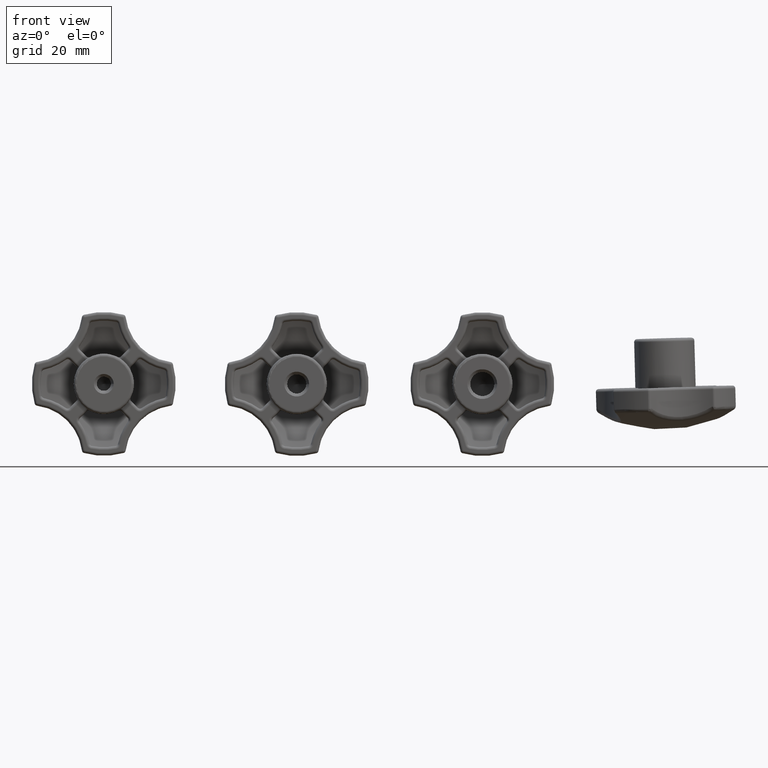
[diagram: clean part render]
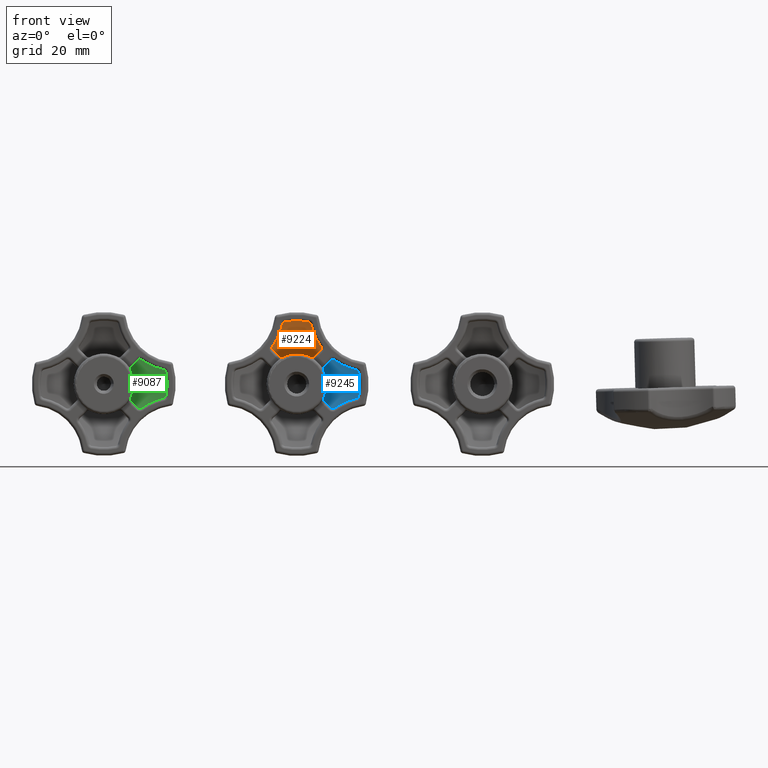
[diagram: same view with three faces highlighted in distinct colors, each labeled with its STEP entity id]
A machine part, front view with three faces highlighted in distinct colors.
Their STEP definitions:

[orange] entity #9224 — the highlighted spherical surface has radius 46.9918 mm.
#56=SPHERICAL_SURFACE('',#10084,46.9917910447761);
#583=CIRCLE('',#10023,10.5);
#617=CIRCLE('',#10079,46.9252429465837);
#618=CIRCLE('',#10082,22.);
#619=CIRCLE('',#10085,46.9252429465837);
#1616=FACE_OUTER_BOUND('',#2264,.T.);
#2264=EDGE_LOOP('',(#6885,#6886,#6887,#6888,#6889,#6890,#6891,#6892,#6893,
#6894,#6895,#6896));
#2825=B_SPLINE_CURVE_WITH_KNOTS('',3,(#16417,#16418,#16419,#16420,#16421,
#16422,#16423,#16424,#16425,#16426,#16427),.UNSPECIFIED.,.F.,.F.,(4,2,3,
2,4),(0.582585438771884,0.601025923742446,0.638791021911288,0.678956437213313,
0.697851038137029),.UNSPECIFIED.);
#2826=B_SPLINE_CURVE_WITH_KNOTS('',3,(#16466,#16467,#16468,#16469,#16470,
#16471,#16472,#16473,#16474,#16475,#16476),.UNSPECIFIED.,.F.,.F.,(4,2,3,
2,4),(0.579730270357903,0.598624871281619,0.638790286583643,0.676555384752485,
0.694995869723048),.UNSPECIFIED.);
#2827=B_SPLINE_CURVE_WITH_KNOTS('',3,(#16482,#16483,#16484,#16485,#16486,
#16487,#16488,#16489,#16490,#16491,#16492),.UNSPECIFIED.,.F.,.F.,(4,2,3,
2,4),(0.548042316468951,0.578951624599889,0.618751588709822,0.657628125187094,
0.687953347428517),.UNSPECIFIED.);
#2828=B_SPLINE_CURVE_WITH_KNOTS('',3,(#16507,#16508,#16509,#16510,#16511,
#16512,#16513,#16514,#16515,#16516,#16517),.UNSPECIFIED.,.F.,.F.,(4,2,3,
2,4),(0.549550723153343,0.579875945394766,0.618752481872039,0.658233009846153,
0.68944739603498),.UNSPECIFIED.);
#2829=B_SPLINE_CURVE_WITH_KNOTS('',3,(#16523,#16524,#16525,#16526,#16527,
#16528,#16529,#16530,#16531,#16532,#16533),.UNSPECIFIED.,.F.,.F.,(4,2,3,
2,4),(0.551679395331765,0.574459541545734,0.612195489768751,0.650579885670993,
0.673602083070949),.UNSPECIFIED.);
#2830=B_SPLINE_CURVE_WITH_KNOTS('',3,(#16537,#16538,#16539,#16540,#16541,
#16542,#16543,#16544),.UNSPECIFIED.,.F.,.F.,(4,2,2,4),(6.67150161002294,
6.80911498582731,7.26921044549458,7.51554097237896),.UNSPECIFIED.);
#2831=B_SPLINE_CURVE_WITH_KNOTS('',3,(#16548,#16549,#16550,#16551,#16552,
#16553,#16554,#16555),.UNSPECIFIED.,.F.,.F.,(4,2,2,4),(5.18249807994112,
5.4288286068255,5.88892406649277,6.02653744229714),.UNSPECIFIED.);
#2832=B_SPLINE_CURVE_WITH_KNOTS('',3,(#16559,#16560,#16561,#16562,#16563,
#16564,#16565,#16566,#16567,#16568,#16569),.UNSPECIFIED.,.F.,.F.,(4,2,3,
2,4),(0.550788896466554,0.573811093866509,0.612195489768751,0.649931437991769,
0.672711584205737),.UNSPECIFIED.);
#3950=VERTEX_POINT('',#16327);
#3951=VERTEX_POINT('',#16329);
#3967=VERTEX_POINT('',#16415);
#3968=VERTEX_POINT('',#16416);
#3979=VERTEX_POINT('',#16464);
#3980=VERTEX_POINT('',#16465);
#3981=VERTEX_POINT('',#16480);
#3982=VERTEX_POINT('',#16481);
#3985=VERTEX_POINT('',#16505);
#3986=VERTEX_POINT('',#16506);
#3987=VERTEX_POINT('',#16521);
#3988=VERTEX_POINT('',#16557);
#4964=EDGE_CURVE('',#3951,#3950,#583,.T.);
#4983=EDGE_CURVE('',#3967,#3968,#2825,.T.);
#5003=EDGE_CURVE('',#3979,#3980,#2826,.T.);
#5006=EDGE_CURVE('',#3981,#3982,#2827,.T.);
#5014=EDGE_CURVE('',#3985,#3986,#2828,.T.);
#5018=EDGE_CURVE('',#3950,#3987,#2829,.T.);
#5019=EDGE_CURVE('',#3987,#3981,#617,.T.);
#5020=EDGE_CURVE('',#3979,#3982,#2830,.F.);
#5021=EDGE_CURVE('',#3967,#3980,#618,.F.);
#5022=EDGE_CURVE('',#3985,#3968,#2831,.F.);
#5023=EDGE_CURVE('',#3986,#3988,#619,.T.);
#5024=EDGE_CURVE('',#3988,#3951,#2832,.T.);
#6885=ORIENTED_EDGE('',*,*,#5006,.T.);
#6886=ORIENTED_EDGE('',*,*,#5020,.F.);
#6887=ORIENTED_EDGE('',*,*,#5003,.T.);
#6888=ORIENTED_EDGE('',*,*,#5021,.F.);
#6889=ORIENTED_EDGE('',*,*,#4983,.T.);
#6890=ORIENTED_EDGE('',*,*,#5022,.F.);
#6891=ORIENTED_EDGE('',*,*,#5014,.T.);
#6892=ORIENTED_EDGE('',*,*,#5023,.T.);
#6893=ORIENTED_EDGE('',*,*,#5024,.T.);
#6894=ORIENTED_EDGE('',*,*,#4964,.T.);
#6895=ORIENTED_EDGE('',*,*,#5018,.T.);
#6896=ORIENTED_EDGE('',*,*,#5019,.T.);
#9224=ADVANCED_FACE('',(#1616),#56,.F.);
#10023=AXIS2_PLACEMENT_3D('',#16330,#11821,#11822);
#10079=AXIS2_PLACEMENT_3D('',#16535,#11947,#11948);
#10082=AXIS2_PLACEMENT_3D('',#16546,#11953,#11954);
#10084=AXIS2_PLACEMENT_3D('',#16556,#11957,#11958);
#10085=AXIS2_PLACEMENT_3D('',#16558,#11959,#11960);
#11821=DIRECTION('center_axis',(0.,1.,0.));
#11822=DIRECTION('ref_axis',(-1.,2.11471052309554E-16,-2.94936186321761E-16));
#11947=DIRECTION('center_axis',(0.707106781186548,0.,-0.707106781186547));
#11948=DIRECTION('ref_axis',(0.,1.,0.));
#11953=DIRECTION('center_axis',(0.,-1.,0.));
#11954=DIRECTION('ref_axis',(-1.,0.,0.));
#11957=DIRECTION('center_axis',(6.12323399573677E-17,0.,1.));
#11958=DIRECTION('ref_axis',(1.,0.,0.));
#11959=DIRECTION('center_axis',(-0.707106781186547,0.,-0.707106781186548));
#11960=DIRECTION('ref_axis',(0.,1.,0.));
#16327=CARTESIAN_POINT('',(4.81273704884783,10.5119034087928,9.33207169382273));
#16329=CARTESIAN_POINT('',(-4.81273704884785,10.5119034087928,9.33207169382273));
#16330=CARTESIAN_POINT('Origin',(0.,10.5119034087928,0.));
#16415=CARTESIAN_POINT('',(-4.18490897575034,6.23203856661572,21.5982993975147));
#16416=CARTESIAN_POINT('',(-4.97019303513557,6.53361737202533,20.8365260433964));
#16417=CARTESIAN_POINT('Ctrl Pts',(-4.18490897575033,6.23203856661571,21.5982993975147));
#16418=CARTESIAN_POINT('Ctrl Pts',(-4.24784108008377,6.23203856661571,21.5861056074648));
#16419=CARTESIAN_POINT('Ctrl Pts',(-4.31033890825064,6.23520123854353,21.5676267360533));
#16420=CARTESIAN_POINT('Ctrl Pts',(-4.49270764702952,6.25433555561599,21.4937435716521));
#16421=CARTESIAN_POINT('Ctrl Pts',(-4.6038696747948,6.28083118130086,21.4188173706508));
#16422=CARTESIAN_POINT('Ctrl Pts',(-4.6909662877788,6.31433464150758,21.3343283526805));
#16423=CARTESIAN_POINT('Ctrl Pts',(-4.78359868651538,6.34996755280683,21.2444692854522));
#16424=CARTESIAN_POINT('Ctrl Pts',(-4.86156941253217,6.39807778345344,21.1321734268189));
#16425=CARTESIAN_POINT('Ctrl Pts',(-4.93798727077353,6.47864732163774,20.9542284262148));
#16426=CARTESIAN_POINT('Ctrl Pts',(-4.95691580763733,6.50586159395927,20.8954076023773));
#16427=CARTESIAN_POINT('Ctrl Pts',(-4.97019303513556,6.53361737202543,20.8365260433964));
#16464=CARTESIAN_POINT('',(4.97019303513556,6.53361737202533,20.8365260433964));
#16465=CARTESIAN_POINT('',(4.18490897575032,6.23203856661572,21.5982993975147));
#16466=CARTESIAN_POINT('Ctrl Pts',(4.97019303513555,6.53361737202542,20.8365260433964));
#16467=CARTESIAN_POINT('Ctrl Pts',(4.95691580763731,6.50586159395927,20.8954076023773));
#16468=CARTESIAN_POINT('Ctrl Pts',(4.93798727077351,6.47864732163774,20.9542284262148));
#16469=CARTESIAN_POINT('Ctrl Pts',(4.86156941253216,6.39807778345344,21.1321734268189));
#16470=CARTESIAN_POINT('Ctrl Pts',(4.78359868651536,6.34996755280683,21.2444692854522));
#16471=CARTESIAN_POINT('Ctrl Pts',(4.69096628777879,6.31433464150758,21.3343283526805));
#16472=CARTESIAN_POINT('Ctrl Pts',(4.60386967479479,6.28083118130086,21.4188173706508));
#16473=CARTESIAN_POINT('Ctrl Pts',(4.4927076470295,6.25433555561598,21.4937435716521));
#16474=CARTESIAN_POINT('Ctrl Pts',(4.31033890825062,6.23520123854352,21.5676267360533));
#16475=CARTESIAN_POINT('Ctrl Pts',(4.24784108008376,6.23203856661571,21.5861056074648));
#16476=CARTESIAN_POINT('Ctrl Pts',(4.18490897575032,6.23203856661571,21.5982993975147));
#16480=CARTESIAN_POINT('',(8.32985461634166,9.40781189397483,11.8653885222744));
#16481=CARTESIAN_POINT('',(8.43334312095328,9.02492701250995,13.1581020679726));
#16482=CARTESIAN_POINT('Ctrl Pts',(8.32985461634167,9.40781189397482,11.8653885222744));
#16483=CARTESIAN_POINT('Ctrl Pts',(8.40113165373093,9.3756089882298,11.9366655596637));
#16484=CARTESIAN_POINT('Ctrl Pts',(8.46380593683761,9.34099368724918,12.0216045392694));
#16485=CARTESIAN_POINT('Ctrl Pts',(8.57305295630665,9.26259011390584,12.2334893061998));
#16486=CARTESIAN_POINT('Ctrl Pts',(8.60940587716854,9.21898698108753,12.3658722289644));
#16487=CARTESIAN_POINT('Ctrl Pts',(8.61955873439344,9.18139408391887,12.4926953588514));
#16488=CARTESIAN_POINT('Ctrl Pts',(8.62947602786542,9.14467340663315,12.6165759739593));
#16489=CARTESIAN_POINT('Ctrl Pts',(8.61563030293525,9.10870266841862,12.7520350045077));
#16490=CARTESIAN_POINT('Ctrl Pts',(8.54211919151406,9.05684990175007,12.9796059495577));
#16491=CARTESIAN_POINT('Ctrl Pts',(8.49346241867735,9.0381944817001,13.074885100079));
#16492=CARTESIAN_POINT('Ctrl Pts',(8.43334312095327,9.02492701250996,13.1581020679726));
#16505=CARTESIAN_POINT('',(-8.43334312095329,9.02492701250995,13.1581020679726));
#16506=CARTESIAN_POINT('',(-8.32985461634168,9.40781189397483,11.8653885222744));
#16507=CARTESIAN_POINT('Ctrl Pts',(-8.43334312095329,9.02492701250997,13.1581020679726));
#16508=CARTESIAN_POINT('Ctrl Pts',(-8.49346241867737,9.03819448170011,13.074885100079));
#16509=CARTESIAN_POINT('Ctrl Pts',(-8.54211919151407,9.05684990175007,12.9796059495577));
#16510=CARTESIAN_POINT('Ctrl Pts',(-8.61563030293526,9.10870266841862,12.7520350045077));
#16511=CARTESIAN_POINT('Ctrl Pts',(-8.62947602786543,9.14467340663315,12.6165759739593));
#16512=CARTESIAN_POINT('Ctrl Pts',(-8.61955873439345,9.18139408391887,12.4926953588514));
#16513=CARTESIAN_POINT('Ctrl Pts',(-8.60948736441488,9.21868525896103,12.3668901165794));
#16514=CARTESIAN_POINT('Ctrl Pts',(-8.57361938439071,9.26193095540231,12.2354805983731));
#16515=CARTESIAN_POINT('Ctrl Pts',(-8.46498154536542,9.34034463589141,12.0231968596306));
#16516=CARTESIAN_POINT('Ctrl Pts',(-8.40174571566366,9.37533155556333,11.9372796215964));
#16517=CARTESIAN_POINT('Ctrl Pts',(-8.32985461634168,9.40781189397482,11.8653885222744));
#16521=CARTESIAN_POINT('',(5.97819973944846,10.3369107293912,9.51373364538121));
#16523=CARTESIAN_POINT('Ctrl Pts',(4.81273704884783,10.5119034087928,9.33207169382273));
#16524=CARTESIAN_POINT('Ctrl Pts',(4.88291557655969,10.5119034087928,9.2958792157285));
#16525=CARTESIAN_POINT('Ctrl Pts',(4.9589326561753,10.5095065350007,9.26741787783101));
#16526=CARTESIAN_POINT('Ctrl Pts',(5.16649711063173,10.4967669792304,9.21745482010281));
#16527=CARTESIAN_POINT('Ctrl Pts',(5.30216194699638,10.482008783338,9.21360818689155));
#16528=CARTESIAN_POINT('Ctrl Pts',(5.42510437086792,10.4635649391621,9.23277135773344));
#16529=CARTESIAN_POINT('Ctrl Pts',(5.5501594150178,10.4448041593183,9.25226382502194));
#16530=CARTESIAN_POINT('Ctrl Pts',(5.67872677525319,10.4197501742752,9.29806363811888));
#16531=CARTESIAN_POINT('Ctrl Pts',(5.86028811160111,10.3739978295767,9.40892292086277));
#16532=CARTESIAN_POINT('Ctrl Pts',(5.92317172236646,10.3555939340801,9.4587056282992));
#16533=CARTESIAN_POINT('Ctrl Pts',(5.97819973944846,10.3369107293912,9.51373364538121));
#16535=CARTESIAN_POINT('Origin',(-1.76776695296637,-35.2917910447761,1.76776695296637));
#16537=CARTESIAN_POINT('Ctrl Pts',(8.43334312095328,9.02492701250996,13.1581020679726));
#16538=CARTESIAN_POINT('Ctrl Pts',(8.14750210498417,8.96184598834273,13.5537624224523));
#16539=CARTESIAN_POINT('Ctrl Pts',(7.87468129791616,8.88472048914707,13.9606276326671));
#16540=CARTESIAN_POINT('Ctrl Pts',(6.75822675360177,8.49164948558887,15.7578272492272));
#16541=CARTESIAN_POINT('Ctrl Pts',(6.08300990968191,8.03159986709822,17.2238585384876));
#16542=CARTESIAN_POINT('Ctrl Pts',(5.35975974996346,7.21944541389401,19.3124411680082));
#16543=CARTESIAN_POINT('Ctrl Pts',(5.14322347997051,6.89533405016276,20.0691743998092));
#16544=CARTESIAN_POINT('Ctrl Pts',(4.97019303513555,6.53361737202543,20.8365260433964));
#16546=CARTESIAN_POINT('Origin',(0.,6.23203856661572,0.));
#16548=CARTESIAN_POINT('Ctrl Pts',(-4.97019303513556,6.53361737202543,20.8365260433964));
#16549=CARTESIAN_POINT('Ctrl Pts',(-5.14322347997052,6.89533405016276,20.0691743998092));
#16550=CARTESIAN_POINT('Ctrl Pts',(-5.35975974996347,7.21944541389401,19.3124411680082));
#16551=CARTESIAN_POINT('Ctrl Pts',(-6.08300990968192,8.03159986709822,17.2238585384876));
#16552=CARTESIAN_POINT('Ctrl Pts',(-6.75822675360178,8.49164948558887,15.7578272492272));
#16553=CARTESIAN_POINT('Ctrl Pts',(-7.87468129791617,8.88472048914707,13.9606276326671));
#16554=CARTESIAN_POINT('Ctrl Pts',(-8.14750210498418,8.96184598834273,13.5537624224523));
#16555=CARTESIAN_POINT('Ctrl Pts',(-8.43334312095329,9.02492701250996,13.1581020679726));
#16556=CARTESIAN_POINT('Origin',(0.,-35.2917910447761,0.));
#16557=CARTESIAN_POINT('',(-5.97819973944847,10.3369107293912,9.5137336453812));
#16558=CARTESIAN_POINT('Origin',(1.76776695296637,-35.2917910447761,1.76776695296637));
#16559=CARTESIAN_POINT('Ctrl Pts',(-5.97819973944847,10.3369107293912,9.5137336453812));
#16560=CARTESIAN_POINT('Ctrl Pts',(-5.92317172236647,10.3555939340801,9.4587056282992));
#16561=CARTESIAN_POINT('Ctrl Pts',(-5.86028811160112,10.3739978295767,9.40892292086277));
#16562=CARTESIAN_POINT('Ctrl Pts',(-5.6787267752532,10.4197501742752,9.29806363811887));
#16563=CARTESIAN_POINT('Ctrl Pts',(-5.55015941501781,10.4448041593183,9.25226382502194));
#16564=CARTESIAN_POINT('Ctrl Pts',(-5.42510437086794,10.4635649391621,9.23277135773344));
#16565=CARTESIAN_POINT('Ctrl Pts',(-5.30216194699639,10.482008783338,9.21360818689154));
#16566=CARTESIAN_POINT('Ctrl Pts',(-5.16649711063175,10.4967669792304,9.21745482010281));
#16567=CARTESIAN_POINT('Ctrl Pts',(-4.95893265617531,10.5095065350007,9.267417877831));
#16568=CARTESIAN_POINT('Ctrl Pts',(-4.8829155765597,10.5119034087928,9.2958792157285));
#16569=CARTESIAN_POINT('Ctrl Pts',(-4.81273704884785,10.5119034087928,9.33207169382273));

[blue] entity #9245 — the highlighted spherical surface has radius 46.9918 mm.
#57=SPHERICAL_SURFACE('',#10161,46.9917910447761);
#581=CIRCLE('',#10021,10.5);
#674=CIRCLE('',#10159,46.9252429465837);
#675=CIRCLE('',#10162,46.9252429465837);
#676=CIRCLE('',#10163,22.);
#1637=FACE_OUTER_BOUND('',#2286,.T.);
#2286=EDGE_LOOP('',(#7029,#7030,#7031,#7032,#7033,#7034,#7035,#7036,#7037,
#7038,#7039,#7040));
#2833=B_SPLINE_CURVE_WITH_KNOTS('',3,(#16635,#16636,#16637,#16638,#16639,
#16640,#16641,#16642,#16643,#16644,#16645),.UNSPECIFIED.,.F.,.F.,(4,2,3,
2,4),(0.549549829991126,0.579875052232549,0.618751588709822,0.658551552819754,
0.689460860950692),.UNSPECIFIED.);
#2834=B_SPLINE_CURVE_WITH_KNOTS('',3,(#16651,#16652,#16653,#16654,#16655,
#16656,#16657,#16658,#16659,#16660,#16661),.UNSPECIFIED.,.F.,.F.,(4,2,3,
2,4),(0.582585438771884,0.601025923742446,0.638791021911289,0.678956437213313,
0.697851038137029),.UNSPECIFIED.);
#2835=B_SPLINE_CURVE_WITH_KNOTS('',3,(#16670,#16671,#16672,#16673,#16674,
#16675,#16676,#16677,#16678,#16679,#16680),.UNSPECIFIED.,.F.,.F.,(4,2,3,
2,4),(0.579730270357903,0.598624871281619,0.638790286583643,0.676555384752485,
0.694995869723048),.UNSPECIFIED.);
#2836=B_SPLINE_CURVE_WITH_KNOTS('',3,(#16686,#16687,#16688,#16689,#16690,
#16691,#16692,#16693,#16694,#16695,#16696),.UNSPECIFIED.,.F.,.F.,(4,2,3,
2,4),(0.548042316468952,0.57895162459989,0.618751588709822,0.657628125187095,
0.687953347428518),.UNSPECIFIED.);
#2837=B_SPLINE_CURVE_WITH_KNOTS('',3,(#16761,#16762,#16763,#16764,#16765,
#16766,#16767,#16768,#16769,#16770,#16771),.UNSPECIFIED.,.F.,.F.,(4,2,3,
2,4),(0.551679395331766,0.574459541545734,0.612195489768751,0.650579885670993,
0.673602083070949),.UNSPECIFIED.);
#2838=B_SPLINE_CURVE_WITH_KNOTS('',3,(#16776,#16777,#16778,#16779,#16780,
#16781,#16782,#16783,#16784,#16785,#16786),.UNSPECIFIED.,.F.,.F.,(4,2,3,
2,4),(0.55078897323554,0.573811170635495,0.612195566537737,0.649931514760754,
0.672711660974723),.UNSPECIFIED.);
#2839=B_SPLINE_CURVE_WITH_KNOTS('',3,(#16790,#16791,#16792,#16793,#16794,
#16795,#16796,#16797),.UNSPECIFIED.,.F.,.F.,(4,2,2,4),(6.67150161002294,
6.80911498582731,7.26921044549458,7.51554097237896),.UNSPECIFIED.);
#2840=B_SPLINE_CURVE_WITH_KNOTS('',3,(#16799,#16800,#16801,#16802,#16803,
#16804,#16805,#16806),.UNSPECIFIED.,.F.,.F.,(4,2,2,4),(5.18249807994112,
5.4288286068255,5.88892406649277,6.02653744229714),.UNSPECIFIED.);
#3944=VERTEX_POINT('',#16297);
#3945=VERTEX_POINT('',#16299);
#4009=VERTEX_POINT('',#16633);
#4010=VERTEX_POINT('',#16634);
#4011=VERTEX_POINT('',#16649);
#4012=VERTEX_POINT('',#16650);
#4013=VERTEX_POINT('',#16668);
#4014=VERTEX_POINT('',#16669);
#4015=VERTEX_POINT('',#16684);
#4016=VERTEX_POINT('',#16685);
#4045=VERTEX_POINT('',#16759);
#4046=VERTEX_POINT('',#16775);
#4958=EDGE_CURVE('',#3945,#3944,#581,.T.);
#5056=EDGE_CURVE('',#4009,#4010,#2833,.T.);
#5059=EDGE_CURVE('',#4011,#4012,#2834,.T.);
#5064=EDGE_CURVE('',#4013,#4014,#2835,.T.);
#5067=EDGE_CURVE('',#4015,#4016,#2836,.T.);
#5101=EDGE_CURVE('',#3944,#4045,#2837,.T.);
#5102=EDGE_CURVE('',#4045,#4015,#674,.T.);
#5103=EDGE_CURVE('',#4046,#3945,#2838,.T.);
#5105=EDGE_CURVE('',#4010,#4046,#675,.T.);
#5106=EDGE_CURVE('',#4013,#4016,#2839,.F.);
#5107=EDGE_CURVE('',#4011,#4014,#676,.F.);
#5108=EDGE_CURVE('',#4009,#4012,#2840,.F.);
#7029=ORIENTED_EDGE('',*,*,#5056,.T.);
#7030=ORIENTED_EDGE('',*,*,#5105,.T.);
#7031=ORIENTED_EDGE('',*,*,#5103,.T.);
#7032=ORIENTED_EDGE('',*,*,#4958,.T.);
#7033=ORIENTED_EDGE('',*,*,#5101,.T.);
#7034=ORIENTED_EDGE('',*,*,#5102,.T.);
#7035=ORIENTED_EDGE('',*,*,#5067,.T.);
#7036=ORIENTED_EDGE('',*,*,#5106,.F.);
#7037=ORIENTED_EDGE('',*,*,#5064,.T.);
#7038=ORIENTED_EDGE('',*,*,#5107,.F.);
#7039=ORIENTED_EDGE('',*,*,#5059,.T.);
#7040=ORIENTED_EDGE('',*,*,#5108,.F.);
#9245=ADVANCED_FACE('',(#1637),#57,.F.);
#10021=AXIS2_PLACEMENT_3D('',#16300,#11815,#11816);
#10159=AXIS2_PLACEMENT_3D('',#16773,#12125,#12126);
#10161=AXIS2_PLACEMENT_3D('',#16788,#12130,#12131);
#10162=AXIS2_PLACEMENT_3D('',#16789,#12132,#12133);
#10163=AXIS2_PLACEMENT_3D('',#16798,#12134,#12135);
#11815=DIRECTION('center_axis',(0.,1.,0.));
#11816=DIRECTION('ref_axis',(-1.,2.11471052309554E-16,-2.94936186321761E-16));
#12125=DIRECTION('center_axis',(-0.707106781186547,0.,-0.707106781186548));
#12126=DIRECTION('ref_axis',(0.,1.,0.));
#12130=DIRECTION('center_axis',(6.12323399573677E-17,0.,1.));
#12131=DIRECTION('ref_axis',(1.,0.,0.));
#12132=DIRECTION('center_axis',(-0.707106781186548,0.,0.707106781186547));
#12133=DIRECTION('ref_axis',(0.,-1.,0.));
#12134=DIRECTION('center_axis',(0.,-1.,0.));
#12135=DIRECTION('ref_axis',(-1.,0.,0.));
#16297=CARTESIAN_POINT('',(9.33207169382273,10.5119034087928,-4.81273704884783));
#16299=CARTESIAN_POINT('',(9.33207169382273,10.5119034087928,4.81273704884785));
#16300=CARTESIAN_POINT('Origin',(0.,10.5119034087928,0.));
#16633=CARTESIAN_POINT('',(13.1581020679726,9.02492701250995,8.43334312095329));
#16634=CARTESIAN_POINT('',(11.8653885222744,9.40781189397483,8.32985461634168));
#16635=CARTESIAN_POINT('Ctrl Pts',(13.1581020679726,9.02492701250997,8.43334312095329));
#16636=CARTESIAN_POINT('Ctrl Pts',(13.074885100079,9.03819448170011,8.49346241867736));
#16637=CARTESIAN_POINT('Ctrl Pts',(12.9796059495577,9.05684990175008,8.54211919151407));
#16638=CARTESIAN_POINT('Ctrl Pts',(12.7520350045077,9.10870266841863,8.61563030293526));
#16639=CARTESIAN_POINT('Ctrl Pts',(12.6165759739593,9.14467340663315,8.62947602786543));
#16640=CARTESIAN_POINT('Ctrl Pts',(12.4926953588514,9.18139408391887,8.61955873439345));
#16641=CARTESIAN_POINT('Ctrl Pts',(12.3658722289644,9.21898698108753,8.60940587716854));
#16642=CARTESIAN_POINT('Ctrl Pts',(12.2334893061998,9.26259011390584,8.57305295630665));
#16643=CARTESIAN_POINT('Ctrl Pts',(12.0216045392693,9.34099368724918,8.46380593683761));
#16644=CARTESIAN_POINT('Ctrl Pts',(11.9366655596637,9.3756089882298,8.40113165373094));
#16645=CARTESIAN_POINT('Ctrl Pts',(11.8653885222744,9.40781189397482,8.32985461634167));
#16649=CARTESIAN_POINT('',(21.5982993975147,6.23203856661572,4.18490897575033));
#16650=CARTESIAN_POINT('',(20.8365260433964,6.53361737202533,4.97019303513557));
#16651=CARTESIAN_POINT('Ctrl Pts',(21.5982993975147,6.23203856661572,4.18490897575033));
#16652=CARTESIAN_POINT('Ctrl Pts',(21.5861056074648,6.23203856661572,4.24784108008377));
#16653=CARTESIAN_POINT('Ctrl Pts',(21.5676267360533,6.23520123854353,4.31033890825063));
#16654=CARTESIAN_POINT('Ctrl Pts',(21.4937435716521,6.25433555561599,4.49270764702951));
#16655=CARTESIAN_POINT('Ctrl Pts',(21.4188173706508,6.28083118130086,4.6038696747948));
#16656=CARTESIAN_POINT('Ctrl Pts',(21.3343283526805,6.31433464150758,4.6909662877788));
#16657=CARTESIAN_POINT('Ctrl Pts',(21.2444692854522,6.34996755280683,4.78359868651537));
#16658=CARTESIAN_POINT('Ctrl Pts',(21.1321734268189,6.39807778345344,4.86156941253217));
#16659=CARTESIAN_POINT('Ctrl Pts',(20.9542284262148,6.47864732163774,4.93798727077352));
#16660=CARTESIAN_POINT('Ctrl Pts',(20.8954076023773,6.50586159395926,4.95691580763733));
#16661=CARTESIAN_POINT('Ctrl Pts',(20.8365260433964,6.53361737202542,4.97019303513556));
#16668=CARTESIAN_POINT('',(20.8365260433964,6.53361737202533,-4.97019303513556));
#16669=CARTESIAN_POINT('',(21.5982993975147,6.23203856661572,-4.18490897575032));
#16670=CARTESIAN_POINT('Ctrl Pts',(20.8365260433964,6.53361737202542,-4.97019303513555));
#16671=CARTESIAN_POINT('Ctrl Pts',(20.8954076023773,6.50586159395926,-4.95691580763731));
#16672=CARTESIAN_POINT('Ctrl Pts',(20.9542284262148,6.47864732163774,-4.93798727077351));
#16673=CARTESIAN_POINT('Ctrl Pts',(21.1321734268189,6.39807778345344,-4.86156941253216));
#16674=CARTESIAN_POINT('Ctrl Pts',(21.2444692854522,6.34996755280683,-4.78359868651536));
#16675=CARTESIAN_POINT('Ctrl Pts',(21.3343283526805,6.31433464150758,-4.69096628777879));
#16676=CARTESIAN_POINT('Ctrl Pts',(21.4188173706508,6.28083118130086,-4.60386967479479));
#16677=CARTESIAN_POINT('Ctrl Pts',(21.4937435716521,6.25433555561598,-4.4927076470295));
#16678=CARTESIAN_POINT('Ctrl Pts',(21.5676267360533,6.23520123854352,-4.31033890825062));
#16679=CARTESIAN_POINT('Ctrl Pts',(21.5861056074648,6.23203856661572,-4.24784108008376));
#16680=CARTESIAN_POINT('Ctrl Pts',(21.5982993975147,6.23203856661572,-4.18490897575032));
#16684=CARTESIAN_POINT('',(11.8653885222744,9.40781189397483,-8.32985461634166));
#16685=CARTESIAN_POINT('',(13.1581020679726,9.02492701250995,-8.43334312095327));
#16686=CARTESIAN_POINT('Ctrl Pts',(11.8653885222744,9.40781189397482,-8.32985461634166));
#16687=CARTESIAN_POINT('Ctrl Pts',(11.9366655596637,9.3756089882298,-8.40113165373092));
#16688=CARTESIAN_POINT('Ctrl Pts',(12.0216045392694,9.34099368724918,-8.4638059368376));
#16689=CARTESIAN_POINT('Ctrl Pts',(12.2334893061998,9.26259011390584,-8.57305295630664));
#16690=CARTESIAN_POINT('Ctrl Pts',(12.3658722289644,9.21898698108753,-8.60940587716853));
#16691=CARTESIAN_POINT('Ctrl Pts',(12.4926953588514,9.18139408391887,-8.61955873439343));
#16692=CARTESIAN_POINT('Ctrl Pts',(12.6165759739593,9.14467340663315,-8.62947602786542));
#16693=CARTESIAN_POINT('Ctrl Pts',(12.7520350045077,9.10870266841862,-8.61563030293524));
#16694=CARTESIAN_POINT('Ctrl Pts',(12.9796059495578,9.05684990175007,-8.54211919151405));
#16695=CARTESIAN_POINT('Ctrl Pts',(13.074885100079,9.0381944817001,-8.49346241867735));
#16696=CARTESIAN_POINT('Ctrl Pts',(13.1581020679726,9.02492701250996,-8.43334312095327));
#16759=CARTESIAN_POINT('',(9.51373364538121,10.3369107293912,-5.97819973944846));
#16761=CARTESIAN_POINT('Ctrl Pts',(9.33207169382273,10.5119034087928,-4.81273704884783));
#16762=CARTESIAN_POINT('Ctrl Pts',(9.2958792157285,10.5119034087928,-4.88291557655969));
#16763=CARTESIAN_POINT('Ctrl Pts',(9.26741787783101,10.5095065350007,-4.9589326561753));
#16764=CARTESIAN_POINT('Ctrl Pts',(9.21745482010281,10.4967669792304,-5.16649711063173));
#16765=CARTESIAN_POINT('Ctrl Pts',(9.21360818689155,10.482008783338,-5.30216194699637));
#16766=CARTESIAN_POINT('Ctrl Pts',(9.23277135773345,10.4635649391621,-5.42510437086792));
#16767=CARTESIAN_POINT('Ctrl Pts',(9.25226382502195,10.4448041593183,-5.5501594150178));
#16768=CARTESIAN_POINT('Ctrl Pts',(9.29806363811888,10.4197501742752,-5.67872677525318));
#16769=CARTESIAN_POINT('Ctrl Pts',(9.40892292086277,10.3739978295767,-5.86028811160111));
#16770=CARTESIAN_POINT('Ctrl Pts',(9.45870562829921,10.3555939340801,-5.92317172236645));
#16771=CARTESIAN_POINT('Ctrl Pts',(9.51373364538121,10.3369107293912,-5.97819973944846));
#16773=CARTESIAN_POINT('Origin',(1.76776695296637,-35.2917910447761,1.76776695296637));
#16775=CARTESIAN_POINT('',(9.5137336453812,10.3369107293912,5.97819973944847));
#16776=CARTESIAN_POINT('Ctrl Pts',(9.5137336453812,10.3369107293912,5.97819973944847));
#16777=CARTESIAN_POINT('Ctrl Pts',(9.4587056282992,10.3555939340801,5.92317172236647));
#16778=CARTESIAN_POINT('Ctrl Pts',(9.40892292086276,10.3739978295767,5.86028811160112));
#16779=CARTESIAN_POINT('Ctrl Pts',(9.29806363811887,10.4197501742752,5.6787267752532));
#16780=CARTESIAN_POINT('Ctrl Pts',(9.25226382502194,10.4448041593183,5.55015941501781));
#16781=CARTESIAN_POINT('Ctrl Pts',(9.23277135773344,10.4635649391621,5.42510437086794));
#16782=CARTESIAN_POINT('Ctrl Pts',(9.21360818689154,10.482008783338,5.30216194699639));
#16783=CARTESIAN_POINT('Ctrl Pts',(9.21745482010281,10.4967669792304,5.16649711063174));
#16784=CARTESIAN_POINT('Ctrl Pts',(9.267417877831,10.5095065350007,4.95893265617531));
#16785=CARTESIAN_POINT('Ctrl Pts',(9.2958792157285,10.5119034087928,4.8829155765597));
#16786=CARTESIAN_POINT('Ctrl Pts',(9.33207169382273,10.5119034087928,4.81273704884785));
#16788=CARTESIAN_POINT('Origin',(0.,-35.2917910447761,0.));
#16789=CARTESIAN_POINT('Origin',(1.76776695296637,-35.2917910447761,-1.76776695296637));
#16790=CARTESIAN_POINT('Ctrl Pts',(13.1581020679726,9.02492701250996,-8.43334312095327));
#16791=CARTESIAN_POINT('Ctrl Pts',(13.5537624224523,8.96184598834273,-8.14750210498417));
#16792=CARTESIAN_POINT('Ctrl Pts',(13.9606276326671,8.88472048914707,-7.87468129791615));
#16793=CARTESIAN_POINT('Ctrl Pts',(15.7578272492272,8.49164948558887,-6.75822675360177));
#16794=CARTESIAN_POINT('Ctrl Pts',(17.2238585384876,8.03159986709822,-6.08300990968191));
#16795=CARTESIAN_POINT('Ctrl Pts',(19.3124411680082,7.21944541389401,-5.35975974996346));
#16796=CARTESIAN_POINT('Ctrl Pts',(20.0691743998092,6.89533405016276,-5.14322347997051));
#16797=CARTESIAN_POINT('Ctrl Pts',(20.8365260433964,6.53361737202542,-4.97019303513555));
#16798=CARTESIAN_POINT('Origin',(0.,6.23203856661572,0.));
#16799=CARTESIAN_POINT('Ctrl Pts',(20.8365260433964,6.53361737202543,4.97019303513556));
#16800=CARTESIAN_POINT('Ctrl Pts',(20.0691743998092,6.89533405016276,5.14322347997052));
#16801=CARTESIAN_POINT('Ctrl Pts',(19.3124411680082,7.21944541389401,5.35975974996347));
#16802=CARTESIAN_POINT('Ctrl Pts',(17.2238585384876,8.03159986709822,6.08300990968191));
#16803=CARTESIAN_POINT('Ctrl Pts',(15.7578272492272,8.49164948558886,6.75822675360178));
#16804=CARTESIAN_POINT('Ctrl Pts',(13.9606276326671,8.88472048914707,7.87468129791616));
#16805=CARTESIAN_POINT('Ctrl Pts',(13.5537624224523,8.96184598834273,8.14750210498418));
#16806=CARTESIAN_POINT('Ctrl Pts',(13.1581020679726,9.02492701250996,8.43334312095329));

[green] entity #9087 — the highlighted spherical surface has radius 46.9918 mm.
#44=SPHERICAL_SURFACE('',#9822,46.9917910447761);
#380=CIRCLE('',#9682,10.5);
#473=CIRCLE('',#9820,46.9252429465837);
#474=CIRCLE('',#9823,46.9252429465837);
#475=CIRCLE('',#9824,22.);
#1479=FACE_OUTER_BOUND('',#2119,.T.);
#2119=EDGE_LOOP('',(#6299,#6300,#6301,#6302,#6303,#6304,#6305,#6306,#6307,
#6308,#6309,#6310));
#2750=B_SPLINE_CURVE_WITH_KNOTS('',3,(#14633,#14634,#14635,#14636,#14637,
#14638,#14639,#14640,#14641,#14642,#14643),.UNSPECIFIED.,.F.,.F.,(4,2,3,
2,4),(0.549549829991126,0.579875052232549,0.618751588709822,0.658551552819754,
0.689460860950692),.UNSPECIFIED.);
#2751=B_SPLINE_CURVE_WITH_KNOTS('',3,(#14649,#14650,#14651,#14652,#14653,
#14654,#14655,#14656,#14657,#14658,#14659),.UNSPECIFIED.,.F.,.F.,(4,2,3,
2,4),(0.582585438771884,0.601025923742446,0.638791021911289,0.678956437213313,
0.697851038137029),.UNSPECIFIED.);
#2752=B_SPLINE_CURVE_WITH_KNOTS('',3,(#14668,#14669,#14670,#14671,#14672,
#14673,#14674,#14675,#14676,#14677,#14678),.UNSPECIFIED.,.F.,.F.,(4,2,3,
2,4),(0.579730270357903,0.598624871281619,0.638790286583643,0.676555384752485,
0.694995869723048),.UNSPECIFIED.);
#2753=B_SPLINE_CURVE_WITH_KNOTS('',3,(#14684,#14685,#14686,#14687,#14688,
#14689,#14690,#14691,#14692,#14693,#14694),.UNSPECIFIED.,.F.,.F.,(4,2,3,
2,4),(0.548042316468952,0.57895162459989,0.618751588709822,0.657628125187095,
0.687953347428518),.UNSPECIFIED.);
#2754=B_SPLINE_CURVE_WITH_KNOTS('',3,(#14759,#14760,#14761,#14762,#14763,
#14764,#14765,#14766,#14767,#14768,#14769),.UNSPECIFIED.,.F.,.F.,(4,2,3,
2,4),(0.551679395331766,0.574459541545734,0.612195489768751,0.650579885670993,
0.673602083070949),.UNSPECIFIED.);
#2755=B_SPLINE_CURVE_WITH_KNOTS('',3,(#14774,#14775,#14776,#14777,#14778,
#14779,#14780,#14781,#14782,#14783,#14784),.UNSPECIFIED.,.F.,.F.,(4,2,3,
2,4),(0.55078897323554,0.573811170635495,0.612195566537737,0.649931514760754,
0.672711660974723),.UNSPECIFIED.);
#2756=B_SPLINE_CURVE_WITH_KNOTS('',3,(#14788,#14789,#14790,#14791,#14792,
#14793,#14794,#14795),.UNSPECIFIED.,.F.,.F.,(4,2,2,4),(6.67150161002294,
6.80911498582731,7.26921044549458,7.51554097237896),.UNSPECIFIED.);
#2757=B_SPLINE_CURVE_WITH_KNOTS('',3,(#14797,#14798,#14799,#14800,#14801,
#14802,#14803,#14804),.UNSPECIFIED.,.F.,.F.,(4,2,2,4),(5.18249807994112,
5.4288286068255,5.88892406649277,6.02653744229714),.UNSPECIFIED.);
#3728=VERTEX_POINT('',#14287);
#3729=VERTEX_POINT('',#14289);
#3793=VERTEX_POINT('',#14631);
#3794=VERTEX_POINT('',#14632);
#3795=VERTEX_POINT('',#14647);
#3796=VERTEX_POINT('',#14648);
#3797=VERTEX_POINT('',#14666);
#3798=VERTEX_POINT('',#14667);
#3799=VERTEX_POINT('',#14682);
#3800=VERTEX_POINT('',#14683);
#3829=VERTEX_POINT('',#14757);
#3830=VERTEX_POINT('',#14773);
#4593=EDGE_CURVE('',#3729,#3728,#380,.T.);
#4691=EDGE_CURVE('',#3793,#3794,#2750,.T.);
#4694=EDGE_CURVE('',#3795,#3796,#2751,.T.);
#4699=EDGE_CURVE('',#3797,#3798,#2752,.T.);
#4702=EDGE_CURVE('',#3799,#3800,#2753,.T.);
#4736=EDGE_CURVE('',#3728,#3829,#2754,.T.);
#4737=EDGE_CURVE('',#3829,#3799,#473,.T.);
#4738=EDGE_CURVE('',#3830,#3729,#2755,.T.);
#4740=EDGE_CURVE('',#3794,#3830,#474,.T.);
#4741=EDGE_CURVE('',#3797,#3800,#2756,.F.);
#4742=EDGE_CURVE('',#3795,#3798,#475,.F.);
#4743=EDGE_CURVE('',#3793,#3796,#2757,.F.);
#6299=ORIENTED_EDGE('',*,*,#4691,.T.);
#6300=ORIENTED_EDGE('',*,*,#4740,.T.);
#6301=ORIENTED_EDGE('',*,*,#4738,.T.);
#6302=ORIENTED_EDGE('',*,*,#4593,.T.);
#6303=ORIENTED_EDGE('',*,*,#4736,.T.);
#6304=ORIENTED_EDGE('',*,*,#4737,.T.);
#6305=ORIENTED_EDGE('',*,*,#4702,.T.);
#6306=ORIENTED_EDGE('',*,*,#4741,.F.);
#6307=ORIENTED_EDGE('',*,*,#4699,.T.);
#6308=ORIENTED_EDGE('',*,*,#4742,.F.);
#6309=ORIENTED_EDGE('',*,*,#4694,.T.);
#6310=ORIENTED_EDGE('',*,*,#4743,.F.);
#9087=ADVANCED_FACE('',(#1479),#44,.F.);
#9682=AXIS2_PLACEMENT_3D('',#14290,#11056,#11057);
#9820=AXIS2_PLACEMENT_3D('',#14771,#11366,#11367);
#9822=AXIS2_PLACEMENT_3D('',#14786,#11371,#11372);
#9823=AXIS2_PLACEMENT_3D('',#14787,#11373,#11374);
#9824=AXIS2_PLACEMENT_3D('',#14796,#11375,#11376);
#11056=DIRECTION('center_axis',(0.,1.,0.));
#11057=DIRECTION('ref_axis',(-1.,2.11471052309554E-16,-2.94936186321761E-16));
#11366=DIRECTION('center_axis',(-0.707106781186547,0.,-0.707106781186548));
#11367=DIRECTION('ref_axis',(0.,1.,0.));
#11371=DIRECTION('center_axis',(6.12323399573677E-17,0.,1.));
#11372=DIRECTION('ref_axis',(1.,0.,0.));
#11373=DIRECTION('center_axis',(-0.707106781186548,0.,0.707106781186547));
#11374=DIRECTION('ref_axis',(0.,-1.,0.));
#11375=DIRECTION('center_axis',(0.,-1.,0.));
#11376=DIRECTION('ref_axis',(-1.,0.,0.));
#14287=CARTESIAN_POINT('',(9.33207169382273,10.5119034087928,-4.81273704884783));
#14289=CARTESIAN_POINT('',(9.33207169382273,10.5119034087928,4.81273704884785));
#14290=CARTESIAN_POINT('Origin',(0.,10.5119034087928,0.));
#14631=CARTESIAN_POINT('',(13.1581020679726,9.02492701250995,8.43334312095329));
#14632=CARTESIAN_POINT('',(11.8653885222744,9.40781189397483,8.32985461634168));
#14633=CARTESIAN_POINT('Ctrl Pts',(13.1581020679726,9.02492701250997,8.43334312095329));
#14634=CARTESIAN_POINT('Ctrl Pts',(13.074885100079,9.03819448170011,8.49346241867736));
#14635=CARTESIAN_POINT('Ctrl Pts',(12.9796059495577,9.05684990175008,8.54211919151407));
#14636=CARTESIAN_POINT('Ctrl Pts',(12.7520350045077,9.10870266841863,8.61563030293526));
#14637=CARTESIAN_POINT('Ctrl Pts',(12.6165759739593,9.14467340663315,8.62947602786543));
#14638=CARTESIAN_POINT('Ctrl Pts',(12.4926953588514,9.18139408391887,8.61955873439345));
#14639=CARTESIAN_POINT('Ctrl Pts',(12.3658722289644,9.21898698108753,8.60940587716854));
#14640=CARTESIAN_POINT('Ctrl Pts',(12.2334893061998,9.26259011390584,8.57305295630665));
#14641=CARTESIAN_POINT('Ctrl Pts',(12.0216045392693,9.34099368724918,8.46380593683761));
#14642=CARTESIAN_POINT('Ctrl Pts',(11.9366655596637,9.3756089882298,8.40113165373094));
#14643=CARTESIAN_POINT('Ctrl Pts',(11.8653885222744,9.40781189397482,8.32985461634167));
#14647=CARTESIAN_POINT('',(21.5982993975147,6.23203856661572,4.18490897575033));
#14648=CARTESIAN_POINT('',(20.8365260433964,6.53361737202533,4.97019303513557));
#14649=CARTESIAN_POINT('Ctrl Pts',(21.5982993975147,6.23203856661572,4.18490897575033));
#14650=CARTESIAN_POINT('Ctrl Pts',(21.5861056074648,6.23203856661572,4.24784108008377));
#14651=CARTESIAN_POINT('Ctrl Pts',(21.5676267360533,6.23520123854353,4.31033890825063));
#14652=CARTESIAN_POINT('Ctrl Pts',(21.4937435716521,6.25433555561599,4.49270764702951));
#14653=CARTESIAN_POINT('Ctrl Pts',(21.4188173706508,6.28083118130086,4.6038696747948));
#14654=CARTESIAN_POINT('Ctrl Pts',(21.3343283526805,6.31433464150758,4.6909662877788));
#14655=CARTESIAN_POINT('Ctrl Pts',(21.2444692854522,6.34996755280683,4.78359868651537));
#14656=CARTESIAN_POINT('Ctrl Pts',(21.1321734268189,6.39807778345344,4.86156941253217));
#14657=CARTESIAN_POINT('Ctrl Pts',(20.9542284262148,6.47864732163774,4.93798727077352));
#14658=CARTESIAN_POINT('Ctrl Pts',(20.8954076023773,6.50586159395926,4.95691580763733));
#14659=CARTESIAN_POINT('Ctrl Pts',(20.8365260433964,6.53361737202542,4.97019303513556));
#14666=CARTESIAN_POINT('',(20.8365260433964,6.53361737202533,-4.97019303513556));
#14667=CARTESIAN_POINT('',(21.5982993975147,6.23203856661572,-4.18490897575032));
#14668=CARTESIAN_POINT('Ctrl Pts',(20.8365260433964,6.53361737202542,-4.97019303513555));
#14669=CARTESIAN_POINT('Ctrl Pts',(20.8954076023773,6.50586159395926,-4.95691580763731));
#14670=CARTESIAN_POINT('Ctrl Pts',(20.9542284262148,6.47864732163774,-4.93798727077351));
#14671=CARTESIAN_POINT('Ctrl Pts',(21.1321734268189,6.39807778345344,-4.86156941253216));
#14672=CARTESIAN_POINT('Ctrl Pts',(21.2444692854522,6.34996755280683,-4.78359868651536));
#14673=CARTESIAN_POINT('Ctrl Pts',(21.3343283526805,6.31433464150758,-4.69096628777879));
#14674=CARTESIAN_POINT('Ctrl Pts',(21.4188173706508,6.28083118130086,-4.60386967479479));
#14675=CARTESIAN_POINT('Ctrl Pts',(21.4937435716521,6.25433555561598,-4.4927076470295));
#14676=CARTESIAN_POINT('Ctrl Pts',(21.5676267360533,6.23520123854352,-4.31033890825062));
#14677=CARTESIAN_POINT('Ctrl Pts',(21.5861056074648,6.23203856661572,-4.24784108008376));
#14678=CARTESIAN_POINT('Ctrl Pts',(21.5982993975147,6.23203856661572,-4.18490897575032));
#14682=CARTESIAN_POINT('',(11.8653885222744,9.40781189397483,-8.32985461634166));
#14683=CARTESIAN_POINT('',(13.1581020679726,9.02492701250995,-8.43334312095327));
#14684=CARTESIAN_POINT('Ctrl Pts',(11.8653885222744,9.40781189397482,-8.32985461634166));
#14685=CARTESIAN_POINT('Ctrl Pts',(11.9366655596637,9.3756089882298,-8.40113165373092));
#14686=CARTESIAN_POINT('Ctrl Pts',(12.0216045392694,9.34099368724918,-8.4638059368376));
#14687=CARTESIAN_POINT('Ctrl Pts',(12.2334893061998,9.26259011390584,-8.57305295630664));
#14688=CARTESIAN_POINT('Ctrl Pts',(12.3658722289644,9.21898698108753,-8.60940587716853));
#14689=CARTESIAN_POINT('Ctrl Pts',(12.4926953588514,9.18139408391887,-8.61955873439343));
#14690=CARTESIAN_POINT('Ctrl Pts',(12.6165759739593,9.14467340663315,-8.62947602786542));
#14691=CARTESIAN_POINT('Ctrl Pts',(12.7520350045077,9.10870266841862,-8.61563030293524));
#14692=CARTESIAN_POINT('Ctrl Pts',(12.9796059495578,9.05684990175007,-8.54211919151405));
#14693=CARTESIAN_POINT('Ctrl Pts',(13.074885100079,9.0381944817001,-8.49346241867735));
#14694=CARTESIAN_POINT('Ctrl Pts',(13.1581020679726,9.02492701250996,-8.43334312095327));
#14757=CARTESIAN_POINT('',(9.51373364538121,10.3369107293912,-5.97819973944846));
#14759=CARTESIAN_POINT('Ctrl Pts',(9.33207169382273,10.5119034087928,-4.81273704884783));
#14760=CARTESIAN_POINT('Ctrl Pts',(9.2958792157285,10.5119034087928,-4.88291557655969));
#14761=CARTESIAN_POINT('Ctrl Pts',(9.26741787783101,10.5095065350007,-4.9589326561753));
#14762=CARTESIAN_POINT('Ctrl Pts',(9.21745482010281,10.4967669792304,-5.16649711063173));
#14763=CARTESIAN_POINT('Ctrl Pts',(9.21360818689155,10.482008783338,-5.30216194699637));
#14764=CARTESIAN_POINT('Ctrl Pts',(9.23277135773345,10.4635649391621,-5.42510437086792));
#14765=CARTESIAN_POINT('Ctrl Pts',(9.25226382502195,10.4448041593183,-5.5501594150178));
#14766=CARTESIAN_POINT('Ctrl Pts',(9.29806363811888,10.4197501742752,-5.67872677525318));
#14767=CARTESIAN_POINT('Ctrl Pts',(9.40892292086277,10.3739978295767,-5.86028811160111));
#14768=CARTESIAN_POINT('Ctrl Pts',(9.45870562829921,10.3555939340801,-5.92317172236645));
#14769=CARTESIAN_POINT('Ctrl Pts',(9.51373364538121,10.3369107293912,-5.97819973944846));
#14771=CARTESIAN_POINT('Origin',(1.76776695296637,-35.2917910447761,1.76776695296637));
#14773=CARTESIAN_POINT('',(9.5137336453812,10.3369107293912,5.97819973944847));
#14774=CARTESIAN_POINT('Ctrl Pts',(9.5137336453812,10.3369107293912,5.97819973944847));
#14775=CARTESIAN_POINT('Ctrl Pts',(9.4587056282992,10.3555939340801,5.92317172236647));
#14776=CARTESIAN_POINT('Ctrl Pts',(9.40892292086276,10.3739978295767,5.86028811160112));
#14777=CARTESIAN_POINT('Ctrl Pts',(9.29806363811887,10.4197501742752,5.6787267752532));
#14778=CARTESIAN_POINT('Ctrl Pts',(9.25226382502194,10.4448041593183,5.55015941501781));
#14779=CARTESIAN_POINT('Ctrl Pts',(9.23277135773344,10.4635649391621,5.42510437086794));
#14780=CARTESIAN_POINT('Ctrl Pts',(9.21360818689154,10.482008783338,5.30216194699639));
#14781=CARTESIAN_POINT('Ctrl Pts',(9.21745482010281,10.4967669792304,5.16649711063174));
#14782=CARTESIAN_POINT('Ctrl Pts',(9.267417877831,10.5095065350007,4.95893265617531));
#14783=CARTESIAN_POINT('Ctrl Pts',(9.2958792157285,10.5119034087928,4.8829155765597));
#14784=CARTESIAN_POINT('Ctrl Pts',(9.33207169382273,10.5119034087928,4.81273704884785));
#14786=CARTESIAN_POINT('Origin',(0.,-35.2917910447761,0.));
#14787=CARTESIAN_POINT('Origin',(1.76776695296637,-35.2917910447761,-1.76776695296637));
#14788=CARTESIAN_POINT('Ctrl Pts',(13.1581020679726,9.02492701250996,-8.43334312095327));
#14789=CARTESIAN_POINT('Ctrl Pts',(13.5537624224523,8.96184598834273,-8.14750210498417));
#14790=CARTESIAN_POINT('Ctrl Pts',(13.9606276326671,8.88472048914707,-7.87468129791615));
#14791=CARTESIAN_POINT('Ctrl Pts',(15.7578272492272,8.49164948558887,-6.75822675360177));
#14792=CARTESIAN_POINT('Ctrl Pts',(17.2238585384876,8.03159986709822,-6.08300990968191));
#14793=CARTESIAN_POINT('Ctrl Pts',(19.3124411680082,7.21944541389401,-5.35975974996346));
#14794=CARTESIAN_POINT('Ctrl Pts',(20.0691743998092,6.89533405016276,-5.14322347997051));
#14795=CARTESIAN_POINT('Ctrl Pts',(20.8365260433964,6.53361737202542,-4.97019303513555));
#14796=CARTESIAN_POINT('Origin',(0.,6.23203856661572,0.));
#14797=CARTESIAN_POINT('Ctrl Pts',(20.8365260433964,6.53361737202543,4.97019303513556));
#14798=CARTESIAN_POINT('Ctrl Pts',(20.0691743998092,6.89533405016276,5.14322347997052));
#14799=CARTESIAN_POINT('Ctrl Pts',(19.3124411680082,7.21944541389401,5.35975974996347));
#14800=CARTESIAN_POINT('Ctrl Pts',(17.2238585384876,8.03159986709822,6.08300990968191));
#14801=CARTESIAN_POINT('Ctrl Pts',(15.7578272492272,8.49164948558886,6.75822675360178));
#14802=CARTESIAN_POINT('Ctrl Pts',(13.9606276326671,8.88472048914707,7.87468129791616));
#14803=CARTESIAN_POINT('Ctrl Pts',(13.5537624224523,8.96184598834273,8.14750210498418));
#14804=CARTESIAN_POINT('Ctrl Pts',(13.1581020679726,9.02492701250996,8.43334312095329));